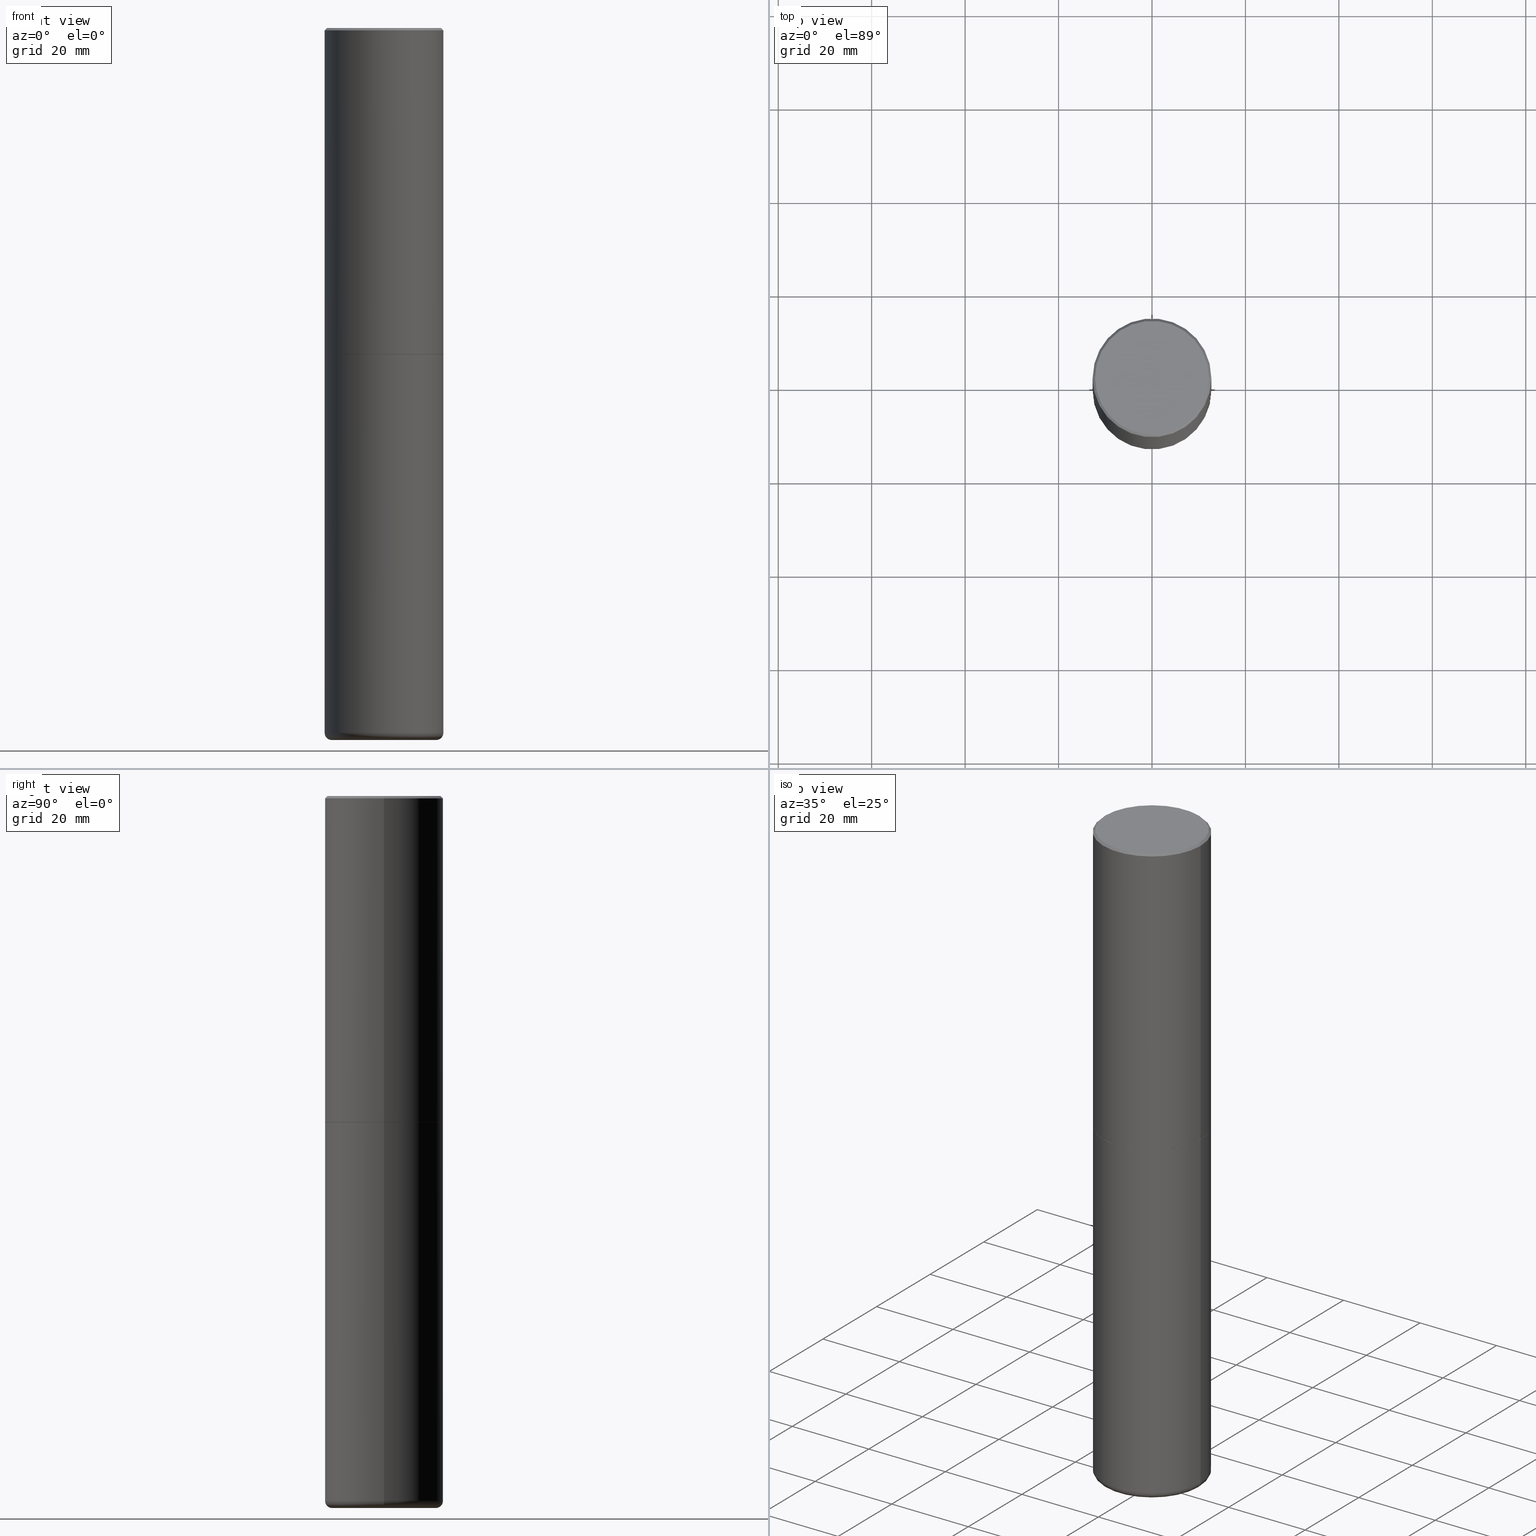
[diagram: canonical four-view strip — front | top / right | iso, engineering-drawing reading convention]
A machine part, canonical four-view strip (front | top / right | iso — engineering-drawing reading convention). The complete STEP part file that produces these views, byte-faithful:
ISO-10303-21;
HEADER;
FILE_DESCRIPTION (( 'STEP AP203' ),
    '1' );
FILE_NAME ('35650.STEP',
    '2022-11-02T20:35:32',
    ( '' ),
    ( '' ),
    'SwSTEP 2.0',
    'SolidWorks 2022',
    '' );
FILE_SCHEMA (( 'CONFIG_CONTROL_DESIGN' ));
ENDSEC;

DATA;
#1 = EDGE_LOOP ( 'NONE', ( #339, #117 ) ) ;
#2 = EDGE_LOOP ( 'NONE', ( #269, #149, #296 ) ) ;
#3 = CARTESIAN_POINT ( 'NONE',  ( -0.3861464078700981850, -1.825081712988965487E-14, -5.999534596140719600 ) ) ;
#4 = ORIENTED_EDGE ( 'NONE', *, *, #199, .F. ) ;
#5 = EDGE_LOOP ( 'NONE', ( #75, #457, #158, #410 ) ) ;
#6 = DIRECTION ( 'NONE',  ( 0.9999619230641714207, -6.890705306874825328E-15, -0.008726535498369011531 ) ) ;
#7 = CARTESIAN_POINT ( 'NONE',  ( 0.000000000000000000, 0.000000000000000000, 0.000000000000000000 ) ) ;
#8 = VECTOR ( 'NONE', #406, 39.37007874015748854 ) ;
#9 = VERTEX_POINT ( 'NONE', #279 ) ;
#10 = CARTESIAN_POINT ( 'NONE',  ( -0.4799999999999989275, 3.386736898677831703E-15, 1.280553747027767124E-17 ) ) ;
#11 = EDGE_CURVE ( 'NONE', #466, #110, #136, .T. ) ;
#12 = EDGE_LOOP ( 'NONE', ( #152, #123, #419, #427 ) ) ;
#13 = PRODUCT_DEFINITION ( 'UNKNOWN', '', #248, #318 ) ;
#14 = DIRECTION ( 'NONE',  ( 2.445468806185136597E-29, -3.491481338843145583E-15, -1.000000000000000000 ) ) ;
#15 = CARTESIAN_POINT ( 'NONE',  ( 0.4999999999999990563, -3.500078625662622374E-15, -0.02000000000000018777 ) ) ;
#16 = DIRECTION ( 'NONE',  ( -0.9993908270190957621, 6.856857904024556470E-15, -0.03489949670250108021 ) ) ;
#17 = CARTESIAN_POINT ( 'NONE',  ( 1.467167470649067006E-28, -2.094726308416916987E-14, -5.999534596140719600 ) ) ;
#18 = CIRCLE ( 'NONE', #73, 0.5000000000000000000 ) ;
#19 = DIRECTION ( 'NONE',  ( -0.7071067811865462405, 2.468850131082243256E-15, -0.7071067811865487940 ) ) ;
#20 = FACE_OUTER_BOUND ( 'NONE', #335, .T. ) ;
#21 = DIRECTION ( 'NONE',  ( -1.000000000000000000, 6.982962677686265922E-15, 0.000000000000000000 ) ) ;
#22 = EDGE_CURVE ( 'NONE', #72, #47, #160, .T. ) ;
#23 = ADVANCED_FACE ( 'NONE', ( #162 ), #347, .T. ) ;
#24 = CARTESIAN_POINT ( 'NONE',  ( 1.463876410420898003E-28, -2.090008845176649569E-14, -5.986050066441421791 ) ) ;
#25 = DIRECTION ( 'NONE',  ( -2.445468806185136597E-29, 3.491481338843145583E-15, 1.000000000000000000 ) ) ;
#26 = AXIS2_PLACEMENT_3D ( 'NONE', #480, #285, #212 ) ;
#27 = CARTESIAN_POINT ( 'NONE',  ( 1.467167470649067006E-28, -2.094726308416916987E-14, -5.999534596140719600 ) ) ;
#28 = CARTESIAN_POINT ( 'NONE',  ( 1.467281283711081958E-28, -2.094888803305887271E-14, -6.000000000000000888 ) ) ;
#29 = EDGE_CURVE ( 'NONE', #265, #262, #443, .T. ) ;
#30 = CALENDAR_DATE ( 2022, 2, 11 ) ;
#31 = CARTESIAN_POINT ( 'NONE',  ( -0.4400000000000003353, -1.761301909207849481E-14, -5.940002284616149097 ) ) ;
#32 = DIRECTION ( 'NONE',  ( -1.000000000000000000, 6.982962677686265922E-15, -4.876176775795935793E-29 ) ) ;
#33 = DIRECTION ( 'NONE',  ( -6.982962677686266711E-15, -1.000000000000000000, 3.491481338843145583E-15 ) ) ;
#34 = DIRECTION ( 'NONE',  ( -2.445468806185136597E-29, 3.491481338843145583E-15, 1.000000000000000000 ) ) ;
#35 = PERSON_AND_ORGANIZATION ( #249, #485 ) ;
#36 = CALENDAR_DATE ( 2022, 2, 11 ) ;
#37 = ORIENTED_EDGE ( 'NONE', *, *, #286, .T. ) ;
#38 = PERSON_AND_ORGANIZATION_ROLE ( 'classification_officer' ) ;
#39 = EDGE_LOOP ( 'NONE', ( #182, #336, #186, #121 ) ) ;
#40 = ORIENTED_EDGE ( 'NONE', *, *, #240, .T. ) ;
#41 = CYLINDRICAL_SURFACE ( 'NONE', #230, 0.4999999999999995004 ) ;
#42 =( CONVERSION_BASED_UNIT ( 'INCH', #188 ) LENGTH_UNIT ( ) NAMED_UNIT ( #49 ) );
#43 = PERSON_AND_ORGANIZATION_ROLE ( 'creator' ) ;
#44 = VERTEX_POINT ( 'NONE', #24 ) ;
#45 = DIRECTION ( 'NONE',  ( -1.000000000000000000, 6.982962677686265922E-15, 0.000000000000000000 ) ) ;
#46 = AXIS2_PLACEMENT_3D ( 'NONE', #445, #397, #450 ) ;
#47 = VERTEX_POINT ( 'NONE', #171 ) ;
#48 = ORIENTED_EDGE ( 'NONE', *, *, #166, .F. ) ;
#49 = DIMENSIONAL_EXPONENTS ( 1.000000000000000000, 0.000000000000000000, 0.000000000000000000, 0.000000000000000000, 0.000000000000000000, 0.000000000000000000, 0.000000000000000000 ) ;
#50 = DIRECTION ( 'NONE',  ( -1.000000000000000000, 6.982962677686269866E-15, 0.000000000000000000 ) ) ;
#51 = DIRECTION ( 'NONE',  ( -2.445468806185136597E-29, 3.491481338843145583E-15, 1.000000000000000000 ) ) ;
#52 = DIRECTION ( 'NONE',  ( -2.445468806185136597E-29, 3.491481338843145583E-15, 1.000000000000000000 ) ) ;
#53 = CARTESIAN_POINT ( 'NONE',  ( 6.725039217009127883E-29, -9.601573681818654592E-15, -2.750000000000000888 ) ) ;
#54 = DIRECTION ( 'NONE',  ( 1.000000000000000000, -6.982962677686262766E-15, 4.883557194083111780E-29 ) ) ;
#55 = DIRECTION ( 'NONE',  ( 0.7071067811865462405, -7.319954787623251312E-15, -0.7071067811865487940 ) ) ;
#56 = DIRECTION ( 'NONE',  ( 1.000000000000000000, -6.982962677686269866E-15, 0.000000000000000000 ) ) ;
#57 = APPROVAL_ROLE ( '' ) ;
#58 = DIRECTION ( 'NONE',  ( -2.445468806185136597E-29, 3.491481338843145583E-15, 1.000000000000000000 ) ) ;
#59 = DIRECTION ( 'NONE',  ( 1.000000000000000000, -6.982962677686270655E-15, 0.000000000000000000 ) ) ;
#60 = AXIS2_PLACEMENT_3D ( 'NONE', #289, #252, #401 ) ;
#61 = CARTESIAN_POINT ( 'NONE',  ( 3.491481338843200408E-15, 0.4999999999999903411, -2.750000000000002220 ) ) ;
#62 = APPROVAL_STATUS ( 'not_yet_approved' ) ;
#63 = CLOSED_SHELL ( 'NONE', ( #151, #233, #97, #380, #268, #23, #324, #165 ) ) ;
#64 = MECHANICAL_CONTEXT ( 'NONE', #482, 'mechanical' ) ;
#65 = DATE_AND_TIME ( #30, #170 ) ;
#66 = DIRECTION ( 'NONE',  ( -2.445468806185136597E-29, 3.491481338843145583E-15, 1.000000000000000000 ) ) ;
#67 = PERSON_AND_ORGANIZATION ( #249, #485 ) ;
#68 = ORIENTED_EDGE ( 'NONE', *, *, #167, .F. ) ;
#69 = COORDINATED_UNIVERSAL_TIME_OFFSET ( 5, 0, .BEHIND. ) ;
#70 = EDGE_CURVE ( 'NONE', #44, #265, #129, .T. ) ;
#71 = AXIS2_PLACEMENT_3D ( 'NONE', #476, #481, #128 ) ;
#72 = VERTEX_POINT ( 'NONE', #126 ) ;
#73 = AXIS2_PLACEMENT_3D ( 'NONE', #115, #430, #187 ) ;
#74 = ORIENTED_EDGE ( 'NONE', *, *, #328, .F. ) ;
#75 = ORIENTED_EDGE ( 'NONE', *, *, #274, .F. ) ;
#76 = CARTESIAN_POINT ( 'NONE',  ( 0.5000000000000000000, -3.491481338843133355E-15, 2.438088387897967896E-29 ) ) ;
#77 = ORIENTED_EDGE ( 'NONE', *, *, #366, .T. ) ;
#78 = EDGE_CURVE ( 'NONE', #420, #110, #130, .T. ) ;
#79 = DIRECTION ( 'NONE',  ( 1.000000000000000000, -6.982962677686270655E-15, 0.000000000000000000 ) ) ;
#80 = EDGE_CURVE ( 'NONE', #424, #466, #398, .T. ) ;
#81 = ORIENTED_EDGE ( 'NONE', *, *, #363, .F. ) ;
#82 = DIRECTION ( 'NONE',  ( 1.000000000000000000, -6.982962677686265133E-15, 0.000000000000000000 ) ) ;
#83 = AXIS2_PLACEMENT_3D ( 'NONE', #291, #34, #446 ) ;
#84 = VERTEX_POINT ( 'NONE', #277 ) ;
#85 = ORIENTED_EDGE ( 'NONE', *, *, #100, .T. ) ;
#86 = CARTESIAN_POINT ( 'NONE',  ( 0.3861464078700981850, -2.359641974220864586E-14, -5.999534596140719600 ) ) ;
#87 = DIRECTION ( 'NONE',  ( -2.445468806185136597E-29, 3.491481338843145583E-15, 1.000000000000000000 ) ) ;
#88 = DIRECTION ( 'NONE',  ( 1.000000000000000000, -6.982962677686266711E-15, 0.000000000000000000 ) ) ;
#89 = CARTESIAN_POINT ( 'NONE',  ( 1.467167470649067006E-28, -2.094726308416916987E-14, -5.999534596140719600 ) ) ;
#90 = LINE ( 'NONE', #225, #270 ) ;
#91 = CARTESIAN_POINT ( 'NONE',  ( 6.725039217009127883E-29, -9.601573681818654592E-15, -2.750000000000000888 ) ) ;
#92 = AXIS2_PLACEMENT_3D ( 'NONE', #358, #96, #245 ) ;
#93 = CIRCLE ( 'NONE', #153, 0.5000000000000000000 ) ;
#94 = EDGE_LOOP ( 'NONE', ( #219, #146, #309, #81 ) ) ;
#95 = MANIFOLD_SOLID_BREP ( 'Body-Move/Copy2[2]', #63 ) ;
#96 = DIRECTION ( 'NONE',  ( 2.438088387897960049E-29, -3.491481338843145188E-15, -1.000000000000000000 ) ) ;
#97 = ADVANCED_FACE ( 'NONE', ( #237 ), #139, .T. ) ;
#98 = DIRECTION ( 'NONE',  ( -2.445468806185136877E-29, 3.491481338843145188E-15, 1.000000000000000000 ) ) ;
#99 = AXIS2_PLACEMENT_3D ( 'NONE', #467, #266, #82 ) ;
#100 = EDGE_CURVE ( 'NONE', #315, #264, #357, .T. ) ;
#101 = EDGE_CURVE ( 'NONE', #47, #354, #411, .T. ) ;
#102 = LINE ( 'NONE', #255, #8 ) ;
#103 = PLANE ( 'NONE',  #213 ) ;
#104 = AXIS2_PLACEMENT_3D ( 'NONE', #207, #395, #59 ) ;
#105 = CONICAL_SURFACE ( 'NONE', #206, 0.4999999999999990563, 0.7853981633974465026 ) ;
#106 = LOCAL_TIME ( 16, 35, 32.00000000000000000, #378 ) ;
#107 = DIRECTION ( 'NONE',  ( 1.000000000000000000, -6.982962677686262766E-15, 4.883557194083111780E-29 ) ) ;
#108 = APPROVAL ( #62, 'UNSPECIFIED' ) ;
#109 = APPROVAL_DATE_TIME ( #254, #417 ) ;
#110 = VERTEX_POINT ( 'NONE', #319 ) ;
#111 = VECTOR ( 'NONE', #16, 39.37007874015748143 ) ;
#112 = CALENDAR_DATE ( 2022, 2, 11 ) ;
#113 = ORIENTED_EDGE ( 'NONE', *, *, #29, .F. ) ;
#114 = AXIS2_PLACEMENT_3D ( 'NONE', #360, #87, #434 ) ;
#115 = CARTESIAN_POINT ( 'NONE',  ( 6.725039217009125641E-29, -9.601573681818653015E-15, -2.750000000000000444 ) ) ;
#116 = FACE_OUTER_BOUND ( 'NONE', #379, .T. ) ;
#117 = ORIENTED_EDGE ( 'NONE', *, *, #101, .T. ) ;
#118 = PERSON_AND_ORGANIZATION_ROLE ( 'design_supplier' ) ;
#119 = ORIENTED_EDGE ( 'NONE', *, *, #234, .T. ) ;
#120 = DIRECTION ( 'NONE',  ( -2.445468806185136597E-29, 3.491481338843145583E-15, 1.000000000000000000 ) ) ;
#121 = ORIENTED_EDGE ( 'NONE', *, *, #101, .F. ) ;
#122 = LINE ( 'NONE', #470, #333 ) ;
#123 = ORIENTED_EDGE ( 'NONE', *, *, #184, .T. ) ;
#124 = AXIS2_PLACEMENT_3D ( 'NONE', #7, #460, #422 ) ;
#125 = CARTESIAN_POINT ( 'NONE',  ( 0.4799999999999989275, -3.396558832296475394E-15, 1.280553747032483033E-17 ) ) ;
#126 = CARTESIAN_POINT ( 'NONE',  ( -0.5000000000000000000, -1.161777672682029399E-14, -5.940002284616149097 ) ) ;
#127 = FACE_OUTER_BOUND ( 'NONE', #231, .T. ) ;
#128 = DIRECTION ( 'NONE',  ( 1.000000000000000000, -6.982962677686265922E-15, 0.000000000000000000 ) ) ;
#129 = LINE ( 'NONE', #317, #311 ) ;
#130 = CIRCLE ( 'NONE', #373, 0.4999999999999990563 ) ;
#131 = AXIS2_PLACEMENT_3D ( 'NONE', #91, #164, #473 ) ;
#132 = CIRCLE ( 'NONE', #412, 0.4989999999999999991 ) ;
#133 = APPROVAL_PERSON_ORGANIZATION ( #222, #417, #179 ) ;
#134 = DIRECTION ( 'NONE',  ( -2.445468806185136597E-29, 3.491481338843145583E-15, 1.000000000000000000 ) ) ;
#135 = EDGE_CURVE ( 'NONE', #223, #110, #388, .T. ) ;
#136 = LINE ( 'NONE', #361, #246 ) ;
#137 = UNCERTAINTY_MEASURE_WITH_UNIT (LENGTH_MEASURE( 1.000000000000000082E-05 ), #42, 'distance_accuracy_value', 'NONE');
#138 = DIRECTION ( 'NONE',  ( 1.000000000000000000, -6.982962677686265922E-15, 0.000000000000000000 ) ) ;
#139 = CONICAL_SURFACE ( 'NONE', #459, 0.4999999999999990563, 0.7853981633974465026 ) ;
#140 = VECTOR ( 'NONE', #196, 39.37007874015748143 ) ;
#141 = CARTESIAN_POINT ( 'NONE',  ( 1.452609029569723979E-28, -2.073940712942293841E-14, -5.940002284616149097 ) ) ;
#142 = CARTESIAN_POINT ( 'NONE',  ( -0.4989999999999999991, -6.055965430375753882E-15, -2.750000000000000888 ) ) ;
#143 = DIRECTION ( 'NONE',  ( 1.000000000000000000, -6.982962677686247778E-15, 0.000000000000000000 ) ) ;
#144 = CIRCLE ( 'NONE', #114, 0.4999999999999990563 ) ;
#145 = EDGE_CURVE ( 'NONE', #44, #262, #273, .T. ) ;
#146 = ORIENTED_EDGE ( 'NONE', *, *, #135, .T. ) ;
#147 = ORIENTED_EDGE ( 'NONE', *, *, #172, .T. ) ;
#148 = CALENDAR_DATE ( 2022, 2, 11 ) ;
#149 = ORIENTED_EDGE ( 'NONE', *, *, #70, .T. ) ;
#150 = DIRECTION ( 'NONE',  ( 1.000000000000000000, -6.982962677686265133E-15, 0.000000000000000000 ) ) ;
#151 = ADVANCED_FACE ( 'NONE', ( #479 ), #391, .T. ) ;
#152 = ORIENTED_EDGE ( 'NONE', *, *, #135, .F. ) ;
#153 = AXIS2_PLACEMENT_3D ( 'NONE', #305, #197, #79 ) ;
#154 = DIRECTION ( 'NONE',  ( 2.445468806185136597E-29, -3.491481338843145583E-15, -1.000000000000000000 ) ) ;
#155 = ORIENTED_EDGE ( 'NONE', *, *, #251, .F. ) ;
#156 = CARTESIAN_POINT ( 'NONE',  ( 0.000000000000000000, 0.000000000000000000, 0.000000000000000000 ) ) ;
#157 = PRODUCT_DEFINITION_SHAPE ( 'NONE', 'NONE',  #13 ) ;
#158 = ORIENTED_EDGE ( 'NONE', *, *, #408, .T. ) ;
#159 = DIRECTION ( 'NONE',  ( 1.000000000000000000, -6.982962677686266711E-15, 4.876176775795935793E-29 ) ) ;
#160 = LINE ( 'NONE', #365, #301 ) ;
#161 = AXIS2_PLACEMENT_3D ( 'NONE', #236, #421, #232 ) ;
#162 = FACE_OUTER_BOUND ( 'NONE', #464, .T. ) ;
#163 = CARTESIAN_POINT ( 'NONE',  ( 4.890937612370318701E-31, -6.982962677686356937E-17, -0.02000000000000018777 ) ) ;
#164 = DIRECTION ( 'NONE',  ( -2.445468806185136597E-29, 3.491481338843145583E-15, 1.000000000000000000 ) ) ;
#165 = ADVANCED_FACE ( 'NONE', ( #202 ), #436, .F. ) ;
#166 = EDGE_CURVE ( 'NONE', #72, #9, #367, .T. ) ;
#167 = EDGE_CURVE ( 'NONE', #84, #195, #209, .T. ) ;
#168 = CARTESIAN_POINT ( 'NONE',  ( 6.725039217009125641E-29, -9.601573681818653015E-15, -2.750000000000000444 ) ) ;
#169 = AXIS2_PLACEMENT_3D ( 'NONE', #425, #304, #238 ) ;
#170 = LOCAL_TIME ( 16, 35, 32.00000000000000000, #423 ) ;
#171 = CARTESIAN_POINT ( 'NONE',  ( -0.5000000000000000000, -1.161777672682029399E-14, -2.750000000000000444 ) ) ;
#172 = EDGE_CURVE ( 'NONE', #264, #315, #320, .T. ) ;
#173 = AXIS2_PLACEMENT_3D ( 'NONE', #53, #134, #441 ) ;
#174 = AXIS2_PLACEMENT_3D ( 'NONE', #31, #176, #487 ) ;
#175 = CARTESIAN_POINT ( 'NONE',  ( 0.5000000000000000000, -1.308956353932294336E-14, -2.749000000000000554 ) ) ;
#176 = DIRECTION ( 'NONE',  ( 7.105427357601001859E-15, 1.000000000000000000, -3.491481338843145583E-15 ) ) ;
#177 = APPROVAL_ROLE ( '' ) ;
#178 = DIRECTION ( 'NONE',  ( -2.445468806185136597E-29, 3.491481338843145583E-15, 1.000000000000000000 ) ) ;
#179 = APPROVAL_ROLE ( '' ) ;
#180 = ORIENTED_EDGE ( 'NONE', *, *, #70, .F. ) ;
#181 = DATE_TIME_ROLE ( 'classification_date' ) ;
#182 = ORIENTED_EDGE ( 'NONE', *, *, #22, .F. ) ;
#183 = DIRECTION ( 'NONE',  ( -2.445468806185136597E-29, 3.491481338843145583E-15, 1.000000000000000000 ) ) ;
#184 = EDGE_CURVE ( 'NONE', #223, #195, #392, .T. ) ;
#185 = CALENDAR_DATE ( 2022, 2, 11 ) ;
#186 = ORIENTED_EDGE ( 'NONE', *, *, #348, .T. ) ;
#187 = DIRECTION ( 'NONE',  ( 1.000000000000000000, -6.982962677686266711E-15, 0.000000000000000000 ) ) ;
#188 = LENGTH_MEASURE_WITH_UNIT ( LENGTH_MEASURE( 0.02539999999999999897 ), #465 );
#189 = AXIS2_PLACEMENT_3D ( 'NONE', #321, #25, #477 ) ;
#190 = ORIENTED_EDGE ( 'NONE', *, *, #468, .F. ) ;
#191 = CONICAL_SURFACE ( 'NONE', #472, 0.3861464078700981850, 1.535889741755009918 ) ;
#192 = CC_DESIGN_APPROVAL ( #108, ( #350 ) ) ;
#193 = FACE_OUTER_BOUND ( 'NONE', #2, .T. ) ;
#194 = ORIENTED_EDGE ( 'NONE', *, *, #11, .F. ) ;
#195 = VERTEX_POINT ( 'NONE', #175 ) ;
#196 = DIRECTION ( 'NONE',  ( -2.445468806185136877E-29, 3.491481338843145188E-15, 1.000000000000000000 ) ) ;
#197 = DIRECTION ( 'NONE',  ( -2.445468806185136597E-29, 3.491481338843145583E-15, 1.000000000000000000 ) ) ;
#198 = CARTESIAN_POINT ( 'NONE',  ( -0.4999999999999995004, 3.552713678800497379E-15, -2.459467545127450649E-29 ) ) ;
#199 = EDGE_CURVE ( 'NONE', #264, #9, #383, .T. ) ;
#200 = FACE_OUTER_BOUND ( 'NONE', #300, .T. ) ;
#201 = PRODUCT ( '35650', '35650', '', ( #64 ) ) ;
#202 = FACE_OUTER_BOUND ( 'NONE', #385, .T. ) ;
#203 = AXIS2_PLACEMENT_3D ( 'NONE', #168, #276, #394 ) ;
#204 = APPLICATION_CONTEXT ( 'configuration controlled 3d designs of mechanical parts and assemblies' ) ;
#205 = DIRECTION ( 'NONE',  ( 2.445468806185136597E-29, -3.491481338843145583E-15, -1.000000000000000000 ) ) ;
#206 = AXIS2_PLACEMENT_3D ( 'NONE', #163, #205, #259 ) ;
#207 = CARTESIAN_POINT ( 'NONE',  ( 1.452609029569723979E-28, -2.073940712942293841E-14, -5.940002284616149097 ) ) ;
#208 = ORIENTED_EDGE ( 'NONE', *, *, #78, .T. ) ;
#209 = LINE ( 'NONE', #293, #218 ) ;
#210 = AXIS2_PLACEMENT_3D ( 'NONE', #89, #14, #50 ) ;
#211 = DIRECTION ( 'NONE',  ( -2.445468806185136597E-29, 3.491481338843145583E-15, 1.000000000000000000 ) ) ;
#212 = DIRECTION ( 'NONE',  ( 1.000000000000000000, -6.982962677686267499E-15, 4.876176775795935793E-29 ) ) ;
#213 = AXIS2_PLACEMENT_3D ( 'NONE', #61, #325, #32 ) ;
#214 = APPROVAL_DATE_TIME ( #65, #471 ) ;
#215 = ADVANCED_FACE ( 'NONE', ( #447 ), #103, .F. ) ;
#216 = FACE_OUTER_BOUND ( 'NONE', #94, .T. ) ;
#217 = ORIENTED_EDGE ( 'NONE', *, *, #286, .F. ) ;
#218 = VECTOR ( 'NONE', #332, 39.37007874015748143 ) ;
#219 = ORIENTED_EDGE ( 'NONE', *, *, #328, .T. ) ;
#220 = VERTEX_POINT ( 'NONE', #250 ) ;
#221 = DATE_AND_TIME ( #185, #413 ) ;
#222 = PERSON_AND_ORGANIZATION ( #249, #485 ) ;
#223 = VERTEX_POINT ( 'NONE', #404 ) ;
#224 = DIRECTION ( 'NONE',  ( -2.445468806185136877E-29, 3.491481338843145188E-15, 1.000000000000000000 ) ) ;
#225 = CARTESIAN_POINT ( 'NONE',  ( 0.4999999999999990563, -3.500078625662622374E-15, -0.02000000000000018777 ) ) ;
#226 = ORIENTED_EDGE ( 'NONE', *, *, #22, .T. ) ;
#227 = CARTESIAN_POINT ( 'NONE',  ( 6.722593748202942280E-29, -9.598082200479810007E-15, -2.749000000000000554 ) ) ;
#228 = DIRECTION ( 'NONE',  ( 2.445468806185136597E-29, -3.491481338843145583E-15, -1.000000000000000000 ) ) ;
#229 = ORIENTED_EDGE ( 'NONE', *, *, #199, .T. ) ;
#230 = AXIS2_PLACEMENT_3D ( 'NONE', #156, #120, #458 ) ;
#231 = EDGE_LOOP ( 'NONE', ( #257, #344, #381, #303 ) ) ;
#232 = DIRECTION ( 'NONE',  ( 1.000000000000000000, -6.982962677686265922E-15, 4.876176775795935793E-29 ) ) ;
#233 = ADVANCED_FACE ( 'NONE', ( #216 ), #329, .T. ) ;
#234 = EDGE_CURVE ( 'NONE', #315, #72, #374, .T. ) ;
#235 = ORIENTED_EDGE ( 'NONE', *, *, #322, .F. ) ;
#236 = CARTESIAN_POINT ( 'NONE',  ( 6.725039217009127883E-29, -9.601573681818654592E-15, -2.750000000000000888 ) ) ;
#237 = FACE_OUTER_BOUND ( 'NONE', #267, .T. ) ;
#238 = DIRECTION ( 'NONE',  ( 1.000000000000000000, -6.982962677686266711E-15, 4.876036955247140054E-29 ) ) ;
#239 = EDGE_LOOP ( 'NONE', ( #382, #40, #74, #68 ) ) ;
#240 = EDGE_CURVE ( 'NONE', #220, #223, #258, .T. ) ;
#241 = PRODUCT_RELATED_PRODUCT_CATEGORY ( 'detail', '', ( #201 ) ) ;
#242 = CIRCLE ( 'NONE', #169, 0.4799999999999989275 ) ;
#243 = APPROVAL_PERSON_ORGANIZATION ( #275, #471, #57 ) ;
#244 = DIRECTION ( 'NONE',  ( 2.445468806185136597E-29, -3.491481338843145583E-15, -1.000000000000000000 ) ) ;
#245 = DIRECTION ( 'NONE',  ( -1.000000000000000000, 6.982962677686265922E-15, -4.876176775795935793E-29 ) ) ;
#246 = VECTOR ( 'NONE', #19, 39.37007874015748143 ) ;
#247 = AXIS2_PLACEMENT_3D ( 'NONE', #263, #154, #45 ) ;
#248 = PRODUCT_DEFINITION_FORMATION_WITH_SPECIFIED_SOURCE ( 'ANY', '', #201, .NOT_KNOWN. ) ;
#249 = PERSON ( 'UNSPECIFIED', 'UNSPECIFIED', 'UNSPECIFIED', ('UNSPECIFIED'), ('UNSPECIFIED'), ('UNSPECIFIED') ) ;
#250 = CARTESIAN_POINT ( 'NONE',  ( -0.4989999999999999991, -6.050666976027531480E-15, -2.750000000000000888 ) ) ;
#251 = EDGE_CURVE ( 'NONE', #354, #47, #18, .T. ) ;
#252 = DIRECTION ( 'NONE',  ( 0.000000000000000000, 0.000000000000000000, 1.000000000000000000 ) ) ;
#253 = AXIS2_PLACEMENT_3D ( 'NONE', #355, #228, #21 ) ;
#254 = DATE_AND_TIME ( #36, #106 ) ;
#255 = CARTESIAN_POINT ( 'NONE',  ( -0.4394764078700982290, -1.788004067917835168E-14, -6.000000000000000888 ) ) ;
#256 = PERSON_AND_ORGANIZATION ( #249, #485 ) ;
#257 = ORIENTED_EDGE ( 'NONE', *, *, #405, .T. ) ;
#258 = LINE ( 'NONE', #142, #283 ) ;
#259 = DIRECTION ( 'NONE',  ( -1.000000000000000000, 6.982962677686266711E-15, 0.000000000000000000 ) ) ;
#260 = CLOSED_SHELL ( 'NONE', ( #287, #403, #488, #306, #439, #215, #414, #371, #483 ) ) ;
#261 = CC_DESIGN_APPROVAL ( #471, ( #248 ) ) ;
#262 = VERTEX_POINT ( 'NONE', #3 ) ;
#263 = CARTESIAN_POINT ( 'NONE',  ( 1.467281283711081958E-28, -2.094888803305887271E-14, -6.000000000000000888 ) ) ;
#264 = VERTEX_POINT ( 'NONE', #298 ) ;
#265 = VERTEX_POINT ( 'NONE', #86 ) ;
#266 = DIRECTION ( 'NONE',  ( -2.445468806185136597E-29, 3.491481338843145583E-15, 1.000000000000000000 ) ) ;
#267 = EDGE_LOOP ( 'NONE', ( #295, #469, #208, #194 ) ) ;
#268 = ADVANCED_FACE ( 'NONE', ( #474 ), #41, .T. ) ;
#269 = ORIENTED_EDGE ( 'NONE', *, *, #145, .F. ) ;
#270 = VECTOR ( 'NONE', #55, 39.37007874015748143 ) ;
#271 = ORIENTED_EDGE ( 'NONE', *, *, #240, .F. ) ;
#272 =( NAMED_UNIT ( * ) PLANE_ANGLE_UNIT ( ) SI_UNIT ( $, .RADIAN. ) );
#273 = LINE ( 'NONE', #356, #111 ) ;
#274 = EDGE_CURVE ( 'NONE', #265, #264, #313, .T. ) ;
#275 = PERSON_AND_ORGANIZATION ( #249, #485 ) ;
#276 = DIRECTION ( 'NONE',  ( -2.445468806185136597E-29, 3.491481338843145583E-15, 1.000000000000000000 ) ) ;
#277 = CARTESIAN_POINT ( 'NONE',  ( 0.4989999999999999991, -1.308607205798410036E-14, -2.750000000000000888 ) ) ;
#278 =( GEOMETRIC_REPRESENTATION_CONTEXT ( 3 ) GLOBAL_UNCERTAINTY_ASSIGNED_CONTEXT ( ( #137 ) ) GLOBAL_UNIT_ASSIGNED_CONTEXT ( ( #42, #272, #353 ) ) REPRESENTATION_CONTEXT ( 'NONE', 'WORKASPACE' ) );
#279 = CARTESIAN_POINT ( 'NONE',  ( 0.5000000000000000000, -2.423088846826607176E-14, -5.940002284616149097 ) ) ;
#280 = DIRECTION ( 'NONE',  ( 0.9993908270190957621, -6.978169709227541488E-15, -0.03489949670250108021 ) ) ;
#281 = CC_DESIGN_PERSON_AND_ORGANIZATION_ASSIGNMENT ( #376, #118, ( #248 ) ) ;
#282 = AXIS2_PLACEMENT_3D ( 'NONE', #27, #58, #56 ) ;
#283 = VECTOR ( 'NONE', #290, 39.37007874015748143 ) ;
#284 = LOCAL_TIME ( 16, 35, 32.00000000000000000, #69 ) ;
#285 = DIRECTION ( 'NONE',  ( -2.445468806185136597E-29, 3.491481338843145583E-15, 1.000000000000000000 ) ) ;
#286 = EDGE_CURVE ( 'NONE', #466, #424, #242, .T. ) ;
#287 = ADVANCED_FACE ( 'NONE', ( #127 ), #461, .F. ) ;
#288 = CYLINDRICAL_SURFACE ( 'NONE', #327, 0.5000000000000000000 ) ;
#289 = CARTESIAN_POINT ( 'NONE',  ( 0.000000000000000000, 0.000000000000000000, 0.000000000000000000 ) ) ;
#290 = DIRECTION ( 'NONE',  ( -0.7071067811864267805, 7.493145998869918709E-15, 0.7071067811866682540 ) ) ;
#291 = CARTESIAN_POINT ( 'NONE',  ( 1.467167470649067006E-28, -2.094726308416916987E-14, -5.999534596140719600 ) ) ;
#292 = CONICAL_SURFACE ( 'NONE', #210, 0.3861464078700981850, 1.535889741755009918 ) ;
#293 = CARTESIAN_POINT ( 'NONE',  ( 0.4989999999999999991, -1.308607205798410036E-14, -2.750000000000000888 ) ) ;
#294 = PERSON_AND_ORGANIZATION ( #249, #485 ) ;
#295 = ORIENTED_EDGE ( 'NONE', *, *, #80, .F. ) ;
#296 = ORIENTED_EDGE ( 'NONE', *, *, #405, .F. ) ;
#297 = EDGE_LOOP ( 'NONE', ( #235, #386 ) ) ;
#298 = CARTESIAN_POINT ( 'NONE',  ( 0.4394764078700982290, -2.401773538693939689E-14, -6.000000000000000888 ) ) ;
#299 = CYLINDRICAL_SURFACE ( 'NONE', #124, 0.5000000000000000000 ) ;
#300 = EDGE_LOOP ( 'NONE', ( #342, #85, #229, #48 ) ) ;
#301 = VECTOR ( 'NONE', #393, 39.37007874015748143 ) ;
#302 = AXIS2_PLACEMENT_3D ( 'NONE', #141, #66, #107 ) ;
#303 = ORIENTED_EDGE ( 'NONE', *, *, #408, .F. ) ;
#304 = DIRECTION ( 'NONE',  ( -2.445468806185136597E-29, 3.491481338843145583E-15, 1.000000000000000000 ) ) ;
#305 = CARTESIAN_POINT ( 'NONE',  ( 1.452609029569723979E-28, -2.073940712942293841E-14, -5.940002284616149097 ) ) ;
#306 = ADVANCED_FACE ( 'NONE', ( #193 ), #292, .F. ) ;
#307 = ORIENTED_EDGE ( 'NONE', *, *, #80, .T. ) ;
#308 = CC_DESIGN_DATE_AND_TIME_ASSIGNMENT ( #415, #475, ( #13 ) ) ;
#309 = ORIENTED_EDGE ( 'NONE', *, *, #78, .F. ) ;
#310 = CARTESIAN_POINT ( 'NONE',  ( 0.5000000000000000000, -1.309305502066178637E-14, -2.750000000000000444 ) ) ;
#311 = VECTOR ( 'NONE', #280, 39.37007874015748143 ) ;
#312 = ORIENTED_EDGE ( 'NONE', *, *, #167, .T. ) ;
#313 = LINE ( 'NONE', #433, #399 ) ;
#314 = DIRECTION ( 'NONE',  ( -1.000000000000000000, 6.982962677686269866E-15, 0.000000000000000000 ) ) ;
#315 = VERTEX_POINT ( 'NONE', #389 ) ;
#316 = CARTESIAN_POINT ( 'NONE',  ( 1.452609029569723979E-28, -2.073940712942293841E-14, -5.940002284616149097 ) ) ;
#317 = CARTESIAN_POINT ( 'NONE',  ( 0.3861464078700981850, -2.359641974220864586E-14, -5.999534596140719600 ) ) ;
#318 = DESIGN_CONTEXT ( 'detailed design', #204, 'design' ) ;
#319 = CARTESIAN_POINT ( 'NONE',  ( -0.4999999999999990563, 3.421651712066263352E-15, -0.02000000000000018777 ) ) ;
#320 = CIRCLE ( 'NONE', #437, 0.4394764078700982290 ) ;
#321 = CARTESIAN_POINT ( 'NONE',  ( -3.131554243005659264E-46, 4.471029511141341874E-32, 1.280553747030123384E-17 ) ) ;
#322 = EDGE_CURVE ( 'NONE', #84, #220, #349, .T. ) ;
#323 = CC_DESIGN_PERSON_AND_ORGANIZATION_ASSIGNMENT ( #35, #343, ( #201 ) ) ;
#324 = ADVANCED_FACE ( 'NONE', ( #418 ), #345, .F. ) ;
#325 = DIRECTION ( 'NONE',  ( 2.438088387897960049E-29, -3.491481338843145188E-15, -1.000000000000000000 ) ) ;
#326 = VECTOR ( 'NONE', #98, 39.37007874015748143 ) ;
#327 = AXIS2_PLACEMENT_3D ( 'NONE', #369, #178, #159 ) ;
#328 = EDGE_CURVE ( 'NONE', #195, #223, #478, .T. ) ;
#329 = CYLINDRICAL_SURFACE ( 'NONE', #26, 0.4999999999999995004 ) ;
#330 = CARTESIAN_POINT ( 'NONE',  ( 0.4400000000000003353, -2.381191070760489513E-14, -5.940002284616149097 ) ) ;
#331 = SHAPE_DEFINITION_REPRESENTATION ( #157, #451 ) ;
#332 = DIRECTION ( 'NONE',  ( 0.7071067811864267805, -2.468850131080992517E-15, 0.7071067811866682540 ) ) ;
#333 = VECTOR ( 'NONE', #224, 39.37007874015748143 ) ;
#334 = CC_DESIGN_APPROVAL ( #417, ( #13 ) ) ;
#335 = EDGE_LOOP ( 'NONE', ( #190, #217, #375, #462 ) ) ;
#336 = ORIENTED_EDGE ( 'NONE', *, *, #166, .T. ) ;
#337 = PERSON_AND_ORGANIZATION ( #249, #485 ) ;
#338 = COORDINATED_UNIVERSAL_TIME_OFFSET ( 5, 0, .BEHIND. ) ;
#339 = ORIENTED_EDGE ( 'NONE', *, *, #251, .T. ) ;
#340 = LINE ( 'NONE', #76, #140 ) ;
#341 = APPLICATION_PROTOCOL_DEFINITION ( 'international standard', 'config_control_design', 1994, #482 ) ;
#342 = ORIENTED_EDGE ( 'NONE', *, *, #234, .F. ) ;
#343 = PERSON_AND_ORGANIZATION_ROLE ( 'design_owner' ) ;
#344 = ORIENTED_EDGE ( 'NONE', *, *, #274, .T. ) ;
#345 = PLANE ( 'NONE',  #161 ) ;
#346 = FACE_OUTER_BOUND ( 'NONE', #5, .T. ) ;
#347 = CONICAL_SURFACE ( 'NONE', #131, 0.4989999999999999991, 0.7853981633972775267 ) ;
#348 = EDGE_CURVE ( 'NONE', #9, #354, #340, .T. ) ;
#349 = CIRCLE ( 'NONE', #99, 0.4989999999999999991 ) ;
#350 = SECURITY_CLASSIFICATION ( '', '', #491 ) ;
#351 = ORIENTED_EDGE ( 'NONE', *, *, #184, .F. ) ;
#352 = DIRECTION ( 'NONE',  ( 1.000000000000000000, -6.982962677686266711E-15, 0.000000000000000000 ) ) ;
#353 =( NAMED_UNIT ( * ) SI_UNIT ( $, .STERADIAN. ) SOLID_ANGLE_UNIT ( ) );
#354 = VERTEX_POINT ( 'NONE', #310 ) ;
#355 = CARTESIAN_POINT ( 'NONE',  ( 1.467281283711081958E-28, -2.094888803305887271E-14, -6.000000000000000888 ) ) ;
#356 = CARTESIAN_POINT ( 'NONE',  ( -0.3861464078700981850, -1.825081712988965487E-14, -5.999534596140719600 ) ) ;
#357 = CIRCLE ( 'NONE', #71, 0.4394764078700982290 ) ;
#358 = CARTESIAN_POINT ( 'NONE',  ( 3.351822085289400054E-15, 0.4799999999999989275, -1.669508273909555500E-15 ) ) ;
#359 = DIRECTION ( 'NONE',  ( -2.445468806185136597E-29, 3.491481338843145583E-15, 1.000000000000000000 ) ) ;
#360 = CARTESIAN_POINT ( 'NONE',  ( 4.890937612370318701E-31, -6.982962677686356937E-17, -0.02000000000000018777 ) ) ;
#361 = CARTESIAN_POINT ( 'NONE',  ( -0.4999999999999990563, 3.421651712066263352E-15, -0.02000000000000018777 ) ) ;
#362 = CARTESIAN_POINT ( 'NONE',  ( 4.890937612370318701E-31, -6.982962677686356937E-17, -0.02000000000000018777 ) ) ;
#363 = EDGE_CURVE ( 'NONE', #195, #420, #122, .T. ) ;
#364 = CC_DESIGN_PERSON_AND_ORGANIZATION_ASSIGNMENT ( #67, #38, ( #350 ) ) ;
#365 = CARTESIAN_POINT ( 'NONE',  ( -0.5000000000000000000, 3.552713678800500929E-15, -2.459467545127452891E-29 ) ) ;
#366 = EDGE_CURVE ( 'NONE', #220, #84, #132, .T. ) ;
#367 = CIRCLE ( 'NONE', #104, 0.5000000000000000000 ) ;
#368 = TOROIDAL_SURFACE ( 'NONE', #492, 0.4400000000000003353, 0.06000000000000016431 ) ;
#369 = CARTESIAN_POINT ( 'NONE',  ( 0.000000000000000000, 0.000000000000000000, 0.000000000000000000 ) ) ;
#370 = DATE_AND_TIME ( #148, #284 ) ;
#371 = ADVANCED_FACE ( 'NONE', ( #200 ), #368, .T. ) ;
#372 = APPLICATION_PROTOCOL_DEFINITION ( 'international standard', 'config_control_design', 1994, #204 ) ;
#373 = AXIS2_PLACEMENT_3D ( 'NONE', #362, #51, #88 ) ;
#374 = CIRCLE ( 'NONE', #174, 0.06000000000000017819 ) ;
#375 = ORIENTED_EDGE ( 'NONE', *, *, #11, .T. ) ;
#376 = PERSON_AND_ORGANIZATION ( #249, #485 ) ;
#377 = ORIENTED_EDGE ( 'NONE', *, *, #145, .T. ) ;
#378 = COORDINATED_UNIVERSAL_TIME_OFFSET ( 5, 0, .BEHIND. ) ;
#379 = EDGE_LOOP ( 'NONE', ( #453, #226, #155, #384 ) ) ;
#380 = ADVANCED_FACE ( 'NONE', ( #20 ), #105, .T. ) ;
#381 = ORIENTED_EDGE ( 'NONE', *, *, #100, .F. ) ;
#382 = ORIENTED_EDGE ( 'NONE', *, *, #322, .T. ) ;
#383 = CIRCLE ( 'NONE', #400, 0.06000000000000017819 ) ;
#384 = ORIENTED_EDGE ( 'NONE', *, *, #348, .F. ) ;
#385 = EDGE_LOOP ( 'NONE', ( #37, #307 ) ) ;
#386 = ORIENTED_EDGE ( 'NONE', *, *, #366, .F. ) ;
#387 = CARTESIAN_POINT ( 'NONE',  ( 6.725039217009127883E-29, -9.601573681818654592E-15, -2.750000000000000888 ) ) ;
#388 = LINE ( 'NONE', #198, #326 ) ;
#389 = CARTESIAN_POINT ( 'NONE',  ( -0.4394764078700982290, -1.750645689609044623E-14, -6.000000000000000888 ) ) ;
#390 = FACE_OUTER_BOUND ( 'NONE', #416, .T. ) ;
#391 = CONICAL_SURFACE ( 'NONE', #173, 0.4989999999999999991, 0.7853981633972775267 ) ;
#392 = CIRCLE ( 'NONE', #46, 0.5000000000000000000 ) ;
#393 = DIRECTION ( 'NONE',  ( -2.445468806185136877E-29, 3.491481338843145188E-15, 1.000000000000000000 ) ) ;
#394 = DIRECTION ( 'NONE',  ( 1.000000000000000000, -6.982962677686266711E-15, 0.000000000000000000 ) ) ;
#395 = DIRECTION ( 'NONE',  ( -2.445468806185136597E-29, 3.491481338843145583E-15, 1.000000000000000000 ) ) ;
#396 = CONICAL_SURFACE ( 'NONE', #253, 0.4394764078700982290, 1.562069680534929894 ) ;
#397 = DIRECTION ( 'NONE',  ( -2.445468806185136597E-29, 3.491481338843145583E-15, 1.000000000000000000 ) ) ;
#398 = CIRCLE ( 'NONE', #189, 0.4799999999999989275 ) ;
#399 = VECTOR ( 'NONE', #6, 39.37007874015748854 ) ;
#400 = AXIS2_PLACEMENT_3D ( 'NONE', #330, #33, #143 ) ;
#401 = DIRECTION ( 'NONE',  ( 1.000000000000000000, 0.000000000000000000, 0.000000000000000000 ) ) ;
#402 = APPROVAL_PERSON_ORGANIZATION ( #337, #108, #177 ) ;
#403 = ADVANCED_FACE ( 'NONE', ( #490 ), #484, .T. ) ;
#404 = CARTESIAN_POINT ( 'NONE',  ( -0.5000000000000000000, -1.281242234827831779E-15, -2.749000000000000554 ) ) ;
#405 = EDGE_CURVE ( 'NONE', #262, #265, #448, .T. ) ;
#406 = DIRECTION ( 'NONE',  ( -0.9999619230641714207, 6.952228252019186602E-15, -0.008726535498369011531 ) ) ;
#407 = CC_DESIGN_PERSON_AND_ORGANIZATION_ASSIGNMENT ( #294, #456, ( #248 ) ) ;
#408 = EDGE_CURVE ( 'NONE', #262, #315, #102, .T. ) ;
#409 = COORDINATED_UNIVERSAL_TIME_OFFSET ( 5, 0, .BEHIND. ) ;
#410 = ORIENTED_EDGE ( 'NONE', *, *, #172, .F. ) ;
#411 = CIRCLE ( 'NONE', #203, 0.5000000000000000000 ) ;
#412 = AXIS2_PLACEMENT_3D ( 'NONE', #387, #52, #150 ) ;
#413 = LOCAL_TIME ( 16, 35, 32.00000000000000000, #409 ) ;
#414 = ADVANCED_FACE ( 'NONE', ( #486 ), #288, .T. ) ;
#415 = DATE_AND_TIME ( #112, #463 ) ;
#416 = EDGE_LOOP ( 'NONE', ( #180, #377, #113 ) ) ;
#417 = APPROVAL ( #452, 'UNSPECIFIED' ) ;
#418 = FACE_OUTER_BOUND ( 'NONE', #297, .T. ) ;
#419 = ORIENTED_EDGE ( 'NONE', *, *, #363, .T. ) ;
#420 = VERTEX_POINT ( 'NONE', #15 ) ;
#421 = DIRECTION ( 'NONE',  ( -2.438088387897960049E-29, 3.491481338843145188E-15, 1.000000000000000000 ) ) ;
#422 = DIRECTION ( 'NONE',  ( 1.000000000000000000, -6.982962677686266711E-15, 4.876176775795935793E-29 ) ) ;
#423 = COORDINATED_UNIVERSAL_TIME_OFFSET ( 5, 0, .BEHIND. ) ;
#424 = VERTEX_POINT ( 'NONE', #125 ) ;
#425 = CARTESIAN_POINT ( 'NONE',  ( -3.131554243005659264E-46, 4.471029511141341874E-32, 1.280553747030123384E-17 ) ) ;
#426 = DIRECTION ( 'NONE',  ( 2.445468806185136597E-29, -3.491481338843145583E-15, -1.000000000000000000 ) ) ;
#427 = ORIENTED_EDGE ( 'NONE', *, *, #449, .F. ) ;
#428 = CC_DESIGN_SECURITY_CLASSIFICATION ( #350, ( #248 ) ) ;
#429 = ORIENTED_EDGE ( 'NONE', *, *, #454, .F. ) ;
#430 = DIRECTION ( 'NONE',  ( -2.445468806185136597E-29, 3.491481338843145583E-15, 1.000000000000000000 ) ) ;
#431 = MANIFOLD_SOLID_BREP ( 'Body-Move/Copy2[1]', #260 ) ;
#432 = EDGE_LOOP ( 'NONE', ( #147, #119, #429, #4 ) ) ;
#433 = CARTESIAN_POINT ( 'NONE',  ( 0.4394764078700982290, -2.396391504931950966E-14, -6.000000000000000888 ) ) ;
#434 = DIRECTION ( 'NONE',  ( 1.000000000000000000, -6.982962677686266711E-15, 0.000000000000000000 ) ) ;
#435 = APPROVAL_STATUS ( 'not_yet_approved' ) ;
#436 = PLANE ( 'NONE',  #92 ) ;
#437 = AXIS2_PLACEMENT_3D ( 'NONE', #28, #211, #138 ) ;
#438 = CARTESIAN_POINT ( 'NONE',  ( 4.890937612370318701E-31, -6.982962677686356937E-17, -0.02000000000000018777 ) ) ;
#439 = ADVANCED_FACE ( 'NONE', ( #390 ), #191, .F. ) ;
#440 = CC_DESIGN_PERSON_AND_ORGANIZATION_ASSIGNMENT ( #256, #43, ( #13 ) ) ;
#441 = DIRECTION ( 'NONE',  ( 1.000000000000000000, -6.982962677686265133E-15, 0.000000000000000000 ) ) ;
#442 = DIRECTION ( 'NONE',  ( -1.000000000000000000, 6.982962677686266711E-15, 0.000000000000000000 ) ) ;
#443 = CIRCLE ( 'NONE', #282, 0.3861464078700981850 ) ;
#444 = AXIS2_PLACEMENT_3D ( 'NONE', #227, #183, #352 ) ;
#445 = CARTESIAN_POINT ( 'NONE',  ( 6.722593748202942280E-29, -9.598082200479810007E-15, -2.749000000000000554 ) ) ;
#446 = DIRECTION ( 'NONE',  ( 1.000000000000000000, -6.982962677686269866E-15, 0.000000000000000000 ) ) ;
#447 = FACE_OUTER_BOUND ( 'NONE', #1, .T. ) ;
#448 = CIRCLE ( 'NONE', #83, 0.3861464078700981850 ) ;
#449 = EDGE_CURVE ( 'NONE', #110, #420, #144, .T. ) ;
#450 = DIRECTION ( 'NONE',  ( 1.000000000000000000, -6.982962677686266711E-15, 0.000000000000000000 ) ) ;
#451 = ADVANCED_BREP_SHAPE_REPRESENTATION ( '35650', ( #431, #95, #60 ), #278 ) ;
#452 = APPROVAL_STATUS ( 'not_yet_approved' ) ;
#453 = ORIENTED_EDGE ( 'NONE', *, *, #454, .T. ) ;
#454 = EDGE_CURVE ( 'NONE', #9, #72, #93, .T. ) ;
#455 = CC_DESIGN_DATE_AND_TIME_ASSIGNMENT ( #221, #181, ( #350 ) ) ;
#456 = PERSON_AND_ORGANIZATION_ROLE ( 'creator' ) ;
#457 = ORIENTED_EDGE ( 'NONE', *, *, #29, .T. ) ;
#458 = DIRECTION ( 'NONE',  ( 1.000000000000000000, -6.982962677686267499E-15, 4.876176775795935793E-29 ) ) ;
#459 = AXIS2_PLACEMENT_3D ( 'NONE', #438, #244, #442 ) ;
#460 = DIRECTION ( 'NONE',  ( -2.445468806185136597E-29, 3.491481338843145583E-15, 1.000000000000000000 ) ) ;
#461 = CONICAL_SURFACE ( 'NONE', #247, 0.4394764078700982290, 1.562069680534929894 ) ;
#462 = ORIENTED_EDGE ( 'NONE', *, *, #449, .T. ) ;
#463 = LOCAL_TIME ( 16, 35, 32.00000000000000000, #338 ) ;
#464 = EDGE_LOOP ( 'NONE', ( #271, #77, #312, #351 ) ) ;
#465 =( LENGTH_UNIT ( ) NAMED_UNIT ( * ) SI_UNIT ( $, .METRE. ) );
#466 = VERTEX_POINT ( 'NONE', #10 ) ;
#467 = CARTESIAN_POINT ( 'NONE',  ( 6.725039217009127883E-29, -9.601573681818654592E-15, -2.750000000000000888 ) ) ;
#468 = EDGE_CURVE ( 'NONE', #424, #420, #90, .T. ) ;
#469 = ORIENTED_EDGE ( 'NONE', *, *, #468, .T. ) ;
#470 = CARTESIAN_POINT ( 'NONE',  ( 0.4999999999999995004, -3.491481338843130200E-15, 2.438088387897965374E-29 ) ) ;
#471 = APPROVAL ( #435, 'UNSPECIFIED' ) ;
#472 = AXIS2_PLACEMENT_3D ( 'NONE', #17, #426, #314 ) ;
#473 = DIRECTION ( 'NONE',  ( 1.000000000000000000, -6.982962677686265133E-15, 0.000000000000000000 ) ) ;
#474 = FACE_OUTER_BOUND ( 'NONE', #12, .T. ) ;
#475 = DATE_TIME_ROLE ( 'creation_date' ) ;
#476 = CARTESIAN_POINT ( 'NONE',  ( 1.467281283711081958E-28, -2.094888803305887271E-14, -6.000000000000000888 ) ) ;
#477 = DIRECTION ( 'NONE',  ( 1.000000000000000000, -6.982962677686266711E-15, 4.876036955247140054E-29 ) ) ;
#478 = CIRCLE ( 'NONE', #444, 0.5000000000000000000 ) ;
#479 = FACE_OUTER_BOUND ( 'NONE', #239, .T. ) ;
#480 = CARTESIAN_POINT ( 'NONE',  ( 0.000000000000000000, 0.000000000000000000, 0.000000000000000000 ) ) ;
#481 = DIRECTION ( 'NONE',  ( -2.445468806185136597E-29, 3.491481338843145583E-15, 1.000000000000000000 ) ) ;
#482 = APPLICATION_CONTEXT ( 'configuration controlled 3d designs of mechanical parts and assemblies' ) ;
#483 = ADVANCED_FACE ( 'NONE', ( #346 ), #396, .F. ) ;
#484 = TOROIDAL_SURFACE ( 'NONE', #302, 0.4400000000000003353, 0.06000000000000016431 ) ;
#485 = ORGANIZATION ( 'UNSPECIFIED', 'UNSPECIFIED', '' ) ;
#486 = FACE_OUTER_BOUND ( 'NONE', #39, .T. ) ;
#487 = DIRECTION ( 'NONE',  ( -1.000000000000000000, 7.105427357601001859E-15, 0.000000000000000000 ) ) ;
#488 = ADVANCED_FACE ( 'NONE', ( #116 ), #299, .T. ) ;
#489 = APPROVAL_DATE_TIME ( #370, #108 ) ;
#490 = FACE_OUTER_BOUND ( 'NONE', #432, .T. ) ;
#491 = SECURITY_CLASSIFICATION_LEVEL ( 'unclassified' ) ;
#492 = AXIS2_PLACEMENT_3D ( 'NONE', #316, #359, #54 ) ;
ENDSEC;
END-ISO-10303-21;
